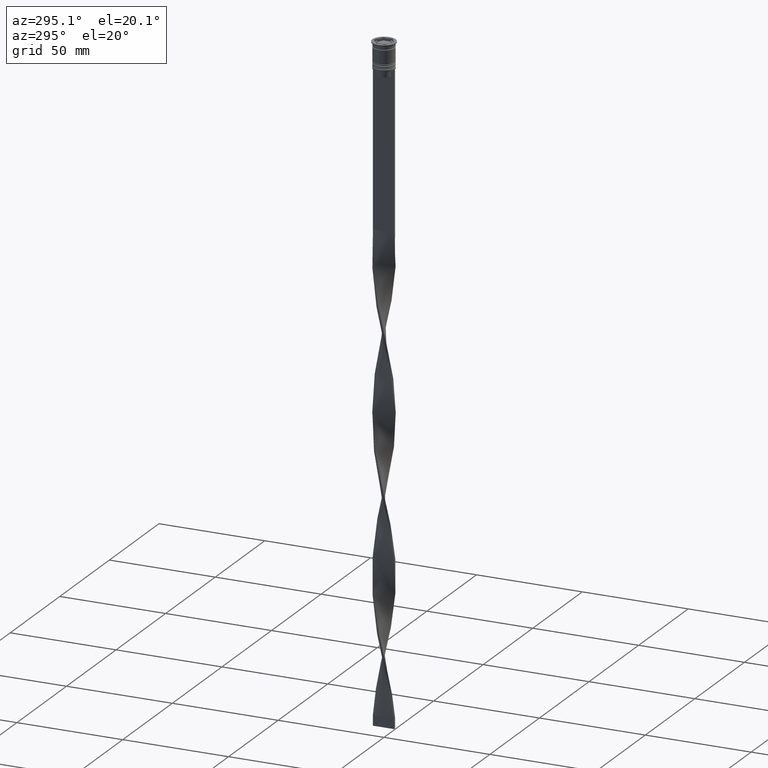
[diagram: clean part render]
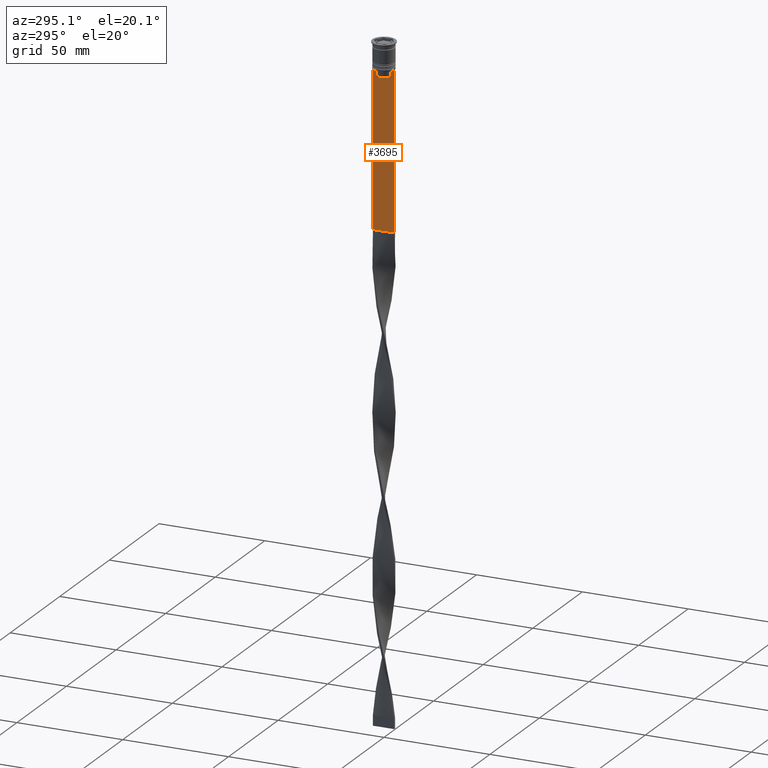
[diagram: same view with one face highlighted and labeled with its STEP entity id]
A machine part, auxiliary view. The second image highlights one B-rep face of the part: STEP entity #3695.
In plain terms, the highlighted planar face has unit normal (-1, 0, 0).
Its self-contained STEP definition (entity closure, byte-faithful):
#8 = CARTESIAN_POINT ( 'NONE',  ( -0.5000000000000000000, -4.999999999999999112, -2.450124378879110054 ) ) ;
#27 = EDGE_LOOP ( 'NONE', ( #3569, #2105, #1134, #2761, #1854, #3463, #4038, #1469, #544, #1543, #1473, #2743 ) ) ;
#47 = VERTEX_POINT ( 'NONE', #1350 ) ;
#100 = LINE ( 'NONE', #2628, #3208 ) ;
#138 = VERTEX_POINT ( 'NONE', #2028 ) ;
#141 = CARTESIAN_POINT ( 'NONE',  ( -0.5000000000000000000, 3.363034344160045652, -15.50000000000000000 ) ) ;
#181 = EDGE_CURVE ( 'NONE', #501, #2545, #4003, .T. ) ;
#247 = EDGE_CURVE ( 'NONE', #2545, #2772, #1879, .T. ) ;
#268 = CARTESIAN_POINT ( 'NONE',  ( -0.5000000000000000000, -3.363034344160045208, -13.00000000000000178 ) ) ;
#306 = VECTOR ( 'NONE', #2117, 1000.000000000000000 ) ;
#328 = CARTESIAN_POINT ( 'NONE',  ( -0.5000000000000000000, -4.999999999999999112, -12.50000000000000000 ) ) ;
#390 = CARTESIAN_POINT ( 'NONE',  ( -0.5000000000000000000, 5.000000000000000888, -12.50000000000000000 ) ) ;
#406 = CARTESIAN_POINT ( 'NONE',  ( -0.5000000000000000000, -4.999999999999999112, -12.50000000000000000 ) ) ;
#412 = CARTESIAN_POINT ( 'NONE',  ( -0.5000000000000000000, 4.874423042781575788, -12.50000000000000000 ) ) ;
#436 = EDGE_CURVE ( 'NONE', #3093, #4081, #3173, .T. ) ;
#481 = CARTESIAN_POINT ( 'NONE',  ( -0.5000000000000000000, 3.363034344160045208, -13.00000000000000178 ) ) ;
#501 = VERTEX_POINT ( 'NONE', #663 ) ;
#544 = ORIENTED_EDGE ( 'NONE', *, *, #3916, .F. ) ;
#595 = CARTESIAN_POINT ( 'NONE',  ( -0.5000000000000000000, 3.363034344160045208, 0.000000000000000000 ) ) ;
#636 = PLANE ( 'NONE',  #3620 ) ;
#663 = CARTESIAN_POINT ( 'NONE',  ( -0.5000000000000000000, 3.867815921162742754, -12.50000000000000000 ) ) ;
#747 = EDGE_CURVE ( 'NONE', #138, #3093, #1649, .T. ) ;
#791 = LINE ( 'NONE', #2169, #3606 ) ;
#796 = CARTESIAN_POINT ( 'NONE',  ( -0.5000000000000000000, -3.699658232838647365, -12.66676999593996555 ) ) ;
#804 = EDGE_CURVE ( 'NONE', #1849, #1144, #2024, .T. ) ;
#850 = EDGE_CURVE ( 'NONE', #2772, #2328, #2933, .T. ) ;
#935 = LINE ( 'NONE', #1561, #306 ) ;
#958 = DIRECTION ( 'NONE',  ( 0.000000000000000000, -1.000000000000000000, 0.000000000000000000 ) ) ;
#1052 = DIRECTION ( 'NONE',  ( 0.000000000000000000, -1.000000000000000000, 0.000000000000000000 ) ) ;
#1100 = CARTESIAN_POINT ( 'NONE',  ( -0.5000000000000000000, -3.363034344160045208, 0.000000000000000000 ) ) ;
#1126 = EDGE_CURVE ( 'NONE', #1144, #501, #100, .T. ) ;
#1134 = ORIENTED_EDGE ( 'NONE', *, *, #804, .F. ) ;
#1144 = VERTEX_POINT ( 'NONE', #412 ) ;
#1271 = DIRECTION ( 'NONE',  ( -1.000000000000000000, 0.000000000000000000, 0.000000000000000000 ) ) ;
#1306 = LINE ( 'NONE', #3828, #1756 ) ;
#1337 = CARTESIAN_POINT ( 'NONE',  ( -0.5000000000000000000, 3.699657965831574913, -12.66677026074361301 ) ) ;
#1350 = CARTESIAN_POINT ( 'NONE',  ( -0.5000000000000000000, 5.000000000000000888, -86.50000000000000000 ) ) ;
#1427 = VECTOR ( 'NONE', #3996, 1000.000000000000000 ) ;
#1439 = DIRECTION ( 'NONE',  ( 0.000000000000000000, 0.000000000000000000, -1.000000000000000000 ) ) ;
#1469 = ORIENTED_EDGE ( 'NONE', *, *, #747, .F. ) ;
#1473 = ORIENTED_EDGE ( 'NONE', *, *, #850, .F. ) ;
#1543 = ORIENTED_EDGE ( 'NONE', *, *, #2821, .F. ) ;
#1551 = B_SPLINE_CURVE_WITH_KNOTS ( 'NONE', 3,
 ( #2364, #2098, #796, #3365 ),
 .UNSPECIFIED., .F., .F.,
 ( 4, 4 ),
 ( 0.01632394437298965648, 0.01703543518243618576 ),
 .UNSPECIFIED. ) ;
#1561 = CARTESIAN_POINT ( 'NONE',  ( -0.5000000000000000000, 5.000000000000000888, -2.450124378879110054 ) ) ;
#1562 = EDGE_CURVE ( 'NONE', #4081, #3602, #791, .T. ) ;
#1649 = LINE ( 'NONE', #3292, #1873 ) ;
#1756 = VECTOR ( 'NONE', #2251, 1000.000000000000000 ) ;
#1821 = DIRECTION ( 'NONE',  ( 0.000000000000000000, 0.000000000000000000, 1.000000000000000000 ) ) ;
#1849 = VERTEX_POINT ( 'NONE', #390 ) ;
#1854 = ORIENTED_EDGE ( 'NONE', *, *, #2665, .F. ) ;
#1873 = VECTOR ( 'NONE', #958, 1000.000000000000000 ) ;
#1879 = LINE ( 'NONE', #595, #3065 ) ;
#1984 = DIRECTION ( 'NONE',  ( 0.000000000000000000, -1.000000000000000000, 0.000000000000000000 ) ) ;
#2024 = LINE ( 'NONE', #406, #3804 ) ;
#2028 = CARTESIAN_POINT ( 'NONE',  ( -0.5000000000000000000, -3.867815921162742754, -12.50000000000000000 ) ) ;
#2098 = CARTESIAN_POINT ( 'NONE',  ( -0.5000000000000000000, -3.531412985305424801, -12.83345201382502765 ) ) ;
#2105 = ORIENTED_EDGE ( 'NONE', *, *, #1126, .F. ) ;
#2107 = CARTESIAN_POINT ( 'NONE',  ( -0.5000000000000000000, 3.867815921162742754, -12.50000000000000000 ) ) ;
#2117 = DIRECTION ( 'NONE',  ( 0.000000000000000000, 0.000000000000000000, -1.000000000000000000 ) ) ;
#2169 = CARTESIAN_POINT ( 'NONE',  ( -0.5000000000000000000, -4.999999999999999112, -2.450124378879110054 ) ) ;
#2173 = CARTESIAN_POINT ( 'NONE',  ( -0.5000000000000000000, -4.999999999999999112, -12.50000000000000000 ) ) ;
#2240 = CARTESIAN_POINT ( 'NONE',  ( -0.5000000000000000000, -3.363034344160045652, -15.50000000000000000 ) ) ;
#2251 = DIRECTION ( 'NONE',  ( 0.000000000000000000, 1.000000000000000000, 0.000000000000000000 ) ) ;
#2328 = VERTEX_POINT ( 'NONE', #2240 ) ;
#2336 = LINE ( 'NONE', #1100, #1427 ) ;
#2364 = CARTESIAN_POINT ( 'NONE',  ( -0.5000000000000000000, -3.363034344160045208, -13.00000000000000178 ) ) ;
#2545 = VERTEX_POINT ( 'NONE', #481 ) ;
#2599 = CARTESIAN_POINT ( 'NONE',  ( -0.5000000000000000000, 3.363034344160045208, -13.00000000000000178 ) ) ;
#2622 = CARTESIAN_POINT ( 'NONE',  ( -0.5000000000000000000, 3.531412678228260216, -12.83345231756357840 ) ) ;
#2628 = CARTESIAN_POINT ( 'NONE',  ( -0.5000000000000000000, -4.999999999999999112, -12.50000000000000000 ) ) ;
#2642 = CARTESIAN_POINT ( 'NONE',  ( -0.5000000000000000000, 3.399999999999998135, -15.50000000000000000 ) ) ;
#2665 = EDGE_CURVE ( 'NONE', #3602, #47, #1306, .T. ) ;
#2743 = ORIENTED_EDGE ( 'NONE', *, *, #247, .F. ) ;
#2761 = ORIENTED_EDGE ( 'NONE', *, *, #4075, .T. ) ;
#2772 = VERTEX_POINT ( 'NONE', #141 ) ;
#2821 = EDGE_CURVE ( 'NONE', #2328, #3496, #2336, .T. ) ;
#2829 = DIRECTION ( 'NONE',  ( 0.000000000000000000, 0.000000000000000000, -1.000000000000000000 ) ) ;
#2933 = LINE ( 'NONE', #2642, #3604 ) ;
#3065 = VECTOR ( 'NONE', #1439, 1000.000000000000000 ) ;
#3093 = VERTEX_POINT ( 'NONE', #3542 ) ;
#3173 = LINE ( 'NONE', #328, #3267 ) ;
#3208 = VECTOR ( 'NONE', #3220, 1000.000000000000000 ) ;
#3220 = DIRECTION ( 'NONE',  ( 0.000000000000000000, -1.000000000000000000, 0.000000000000000000 ) ) ;
#3267 = VECTOR ( 'NONE', #3401, 1000.000000000000000 ) ;
#3292 = CARTESIAN_POINT ( 'NONE',  ( -0.5000000000000000000, -4.999999999999999112, -12.50000000000000000 ) ) ;
#3365 = CARTESIAN_POINT ( 'NONE',  ( -0.5000000000000000000, -3.867815921162742754, -12.50000000000000000 ) ) ;
#3401 = DIRECTION ( 'NONE',  ( 0.000000000000000000, -1.000000000000000000, 0.000000000000000000 ) ) ;
#3463 = ORIENTED_EDGE ( 'NONE', *, *, #1562, .F. ) ;
#3479 = FACE_OUTER_BOUND ( 'NONE', #27, .T. ) ;
#3496 = VERTEX_POINT ( 'NONE', #268 ) ;
#3542 = CARTESIAN_POINT ( 'NONE',  ( -0.5000000000000000000, -4.874423042781575788, -12.50000000000000000 ) ) ;
#3569 = ORIENTED_EDGE ( 'NONE', *, *, #181, .F. ) ;
#3602 = VERTEX_POINT ( 'NONE', #3816 ) ;
#3604 = VECTOR ( 'NONE', #1052, 1000.000000000000000 ) ;
#3606 = VECTOR ( 'NONE', #2829, 1000.000000000000000 ) ;
#3620 = AXIS2_PLACEMENT_3D ( 'NONE', #8, #1271, #1821 ) ;
#3695 = ADVANCED_FACE ( 'NONE', ( #3479 ), #636, .T. ) ;
#3804 = VECTOR ( 'NONE', #1984, 1000.000000000000000 ) ;
#3816 = CARTESIAN_POINT ( 'NONE',  ( -0.5000000000000000000, -4.999999999999999112, -86.50000000000000000 ) ) ;
#3828 = CARTESIAN_POINT ( 'NONE',  ( -0.5000000000000000000, -4.999999999999999112, -86.50000000000000000 ) ) ;
#3916 = EDGE_CURVE ( 'NONE', #3496, #138, #1551, .T. ) ;
#3996 = DIRECTION ( 'NONE',  ( -0.000000000000000000, -0.000000000000000000, 1.000000000000000000 ) ) ;
#4003 = B_SPLINE_CURVE_WITH_KNOTS ( 'NONE', 3,
 ( #2107, #1337, #2622, #2599 ),
 .UNSPECIFIED., .F., .F.,
 ( 4, 4 ),
 ( 0.006644825462451552783, 0.007355321358912435097 ),
 .UNSPECIFIED. ) ;
#4038 = ORIENTED_EDGE ( 'NONE', *, *, #436, .F. ) ;
#4075 = EDGE_CURVE ( 'NONE', #1849, #47, #935, .T. ) ;
#4081 = VERTEX_POINT ( 'NONE', #2173 ) ;